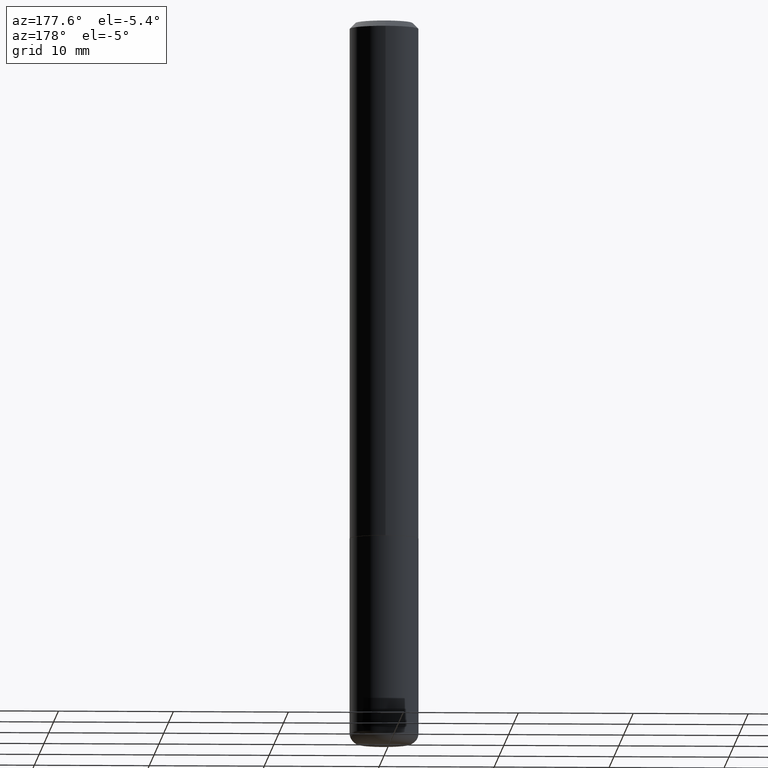
[diagram: clean part render]
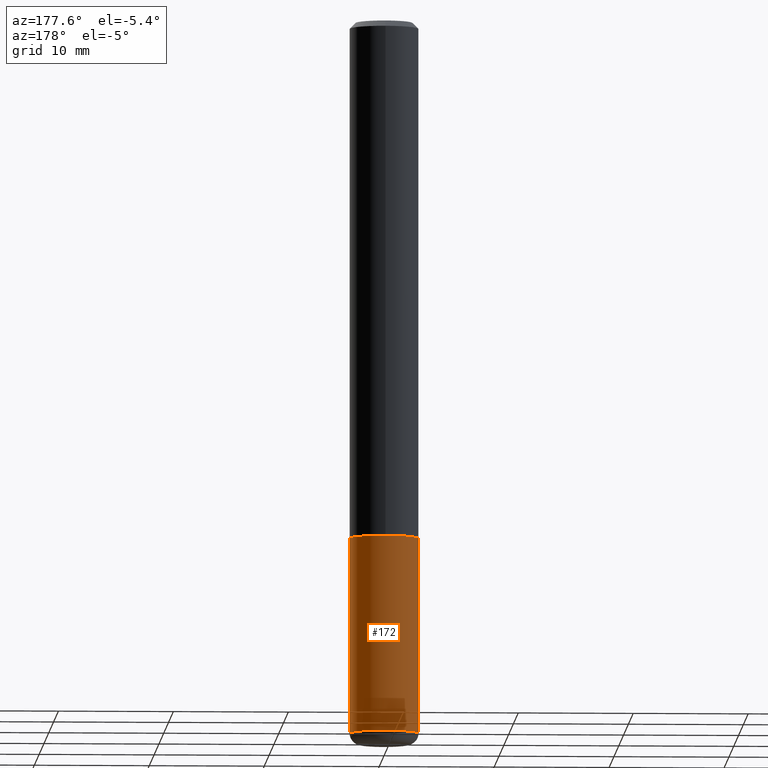
[diagram: same view with one face highlighted and labeled with its STEP entity id]
A machine part, auxiliary view. The second image highlights one B-rep face of the part: STEP entity #172.
In plain terms, the highlighted cylindrical surface (edge-blend (fillet) strip) has radius 2.9997 mm, axis along (-0, 0, 1).
Its self-contained STEP definition (entity closure, byte-faithful):
#2 = DIRECTION ( 'NONE',  ( -2.445468806185136597E-29, 3.491481338843145583E-15, 1.000000000000000000 ) ) ;
#5 = AXIS2_PLACEMENT_3D ( 'NONE', #184, #219, #373 ) ;
#24 = CIRCLE ( 'NONE', #5, 0.1180999999999999966 ) ;
#32 = VECTOR ( 'NONE', #76, 39.37007874015748143 ) ;
#38 = EDGE_CURVE ( 'NONE', #99, #292, #113, .T. ) ;
#55 = AXIS2_PLACEMENT_3D ( 'NONE', #79, #2, #392 ) ;
#76 = DIRECTION ( 'NONE',  ( -2.445468806185136877E-29, 3.491481338843145188E-15, 1.000000000000000000 ) ) ;
#79 = CARTESIAN_POINT ( 'NONE',  ( 0.000000000000000000, 0.000000000000000000, 0.000000000000000000 ) ) ;
#84 = CARTESIAN_POINT ( 'NONE',  ( -0.1180999999999999966, 8.391509709326782957E-16, -5.809262341591043784E-30 ) ) ;
#89 = CARTESIAN_POINT ( 'NONE',  ( 0.1180999999999999966, -7.010196232129265043E-15, -1.771600000000000286 ) ) ;
#90 = EDGE_CURVE ( 'NONE', #138, #418, #154, .T. ) ;
#94 = VECTOR ( 'NONE', #151, 39.37007874015748143 ) ;
#99 = VERTEX_POINT ( 'NONE', #270 ) ;
#111 = CARTESIAN_POINT ( 'NONE',  ( -0.1181000000000000383, -7.683205829049555557E-15, -2.440900000000000070 ) ) ;
#113 = LINE ( 'NONE', #235, #32 ) ;
#114 = DIRECTION ( 'NONE',  ( 1.000000000000000000, -6.982962677686265133E-15, 0.000000000000000000 ) ) ;
#138 = VERTEX_POINT ( 'NONE', #111 ) ;
#151 = DIRECTION ( 'NONE',  ( -2.445468806185136877E-29, 3.491481338843145188E-15, 1.000000000000000000 ) ) ;
#154 = LINE ( 'NONE', #84, #94 ) ;
#171 = ORIENTED_EDGE ( 'NONE', *, *, #280, .T. ) ;
#172 = ADVANCED_FACE ( 'NONE', ( #264 ), #296, .T. ) ;
#178 = ORIENTED_EDGE ( 'NONE', *, *, #187, .F. ) ;
#184 = CARTESIAN_POINT ( 'NONE',  ( 5.969144809017300159E-29, -8.522356799982234543E-15, -2.440900000000000070 ) ) ;
#187 = EDGE_CURVE ( 'NONE', #292, #418, #339, .T. ) ;
#201 = EDGE_LOOP ( 'NONE', ( #171, #316, #178, #378 ) ) ;
#219 = DIRECTION ( 'NONE',  ( -2.445468806185136597E-29, 3.491481338843145583E-15, 1.000000000000000000 ) ) ;
#235 = CARTESIAN_POINT ( 'NONE',  ( 0.1180999999999999966, -8.246878922347480654E-16, 5.758764772215000440E-30 ) ) ;
#247 = CARTESIAN_POINT ( 'NONE',  ( -0.1180999999999999966, -6.514781599005697070E-15, -1.771600000000000286 ) ) ;
#264 = FACE_OUTER_BOUND ( 'NONE', #201, .T. ) ;
#270 = CARTESIAN_POINT ( 'NONE',  ( 0.1181000000000000383, -9.347044692216982806E-15, -2.440900000000000070 ) ) ;
#280 = EDGE_CURVE ( 'NONE', #99, #138, #24, .T. ) ;
#292 = VERTEX_POINT ( 'NONE', #89 ) ;
#296 = CYLINDRICAL_SURFACE ( 'NONE', #55, 0.1180999999999999966 ) ;
#316 = ORIENTED_EDGE ( 'NONE', *, *, #90, .T. ) ;
#331 = AXIS2_PLACEMENT_3D ( 'NONE', #351, #382, #114 ) ;
#339 = CIRCLE ( 'NONE', #331, 0.1180999999999999966 ) ;
#351 = CARTESIAN_POINT ( 'NONE',  ( 4.332392537037588763E-29, -6.185508339894517569E-15, -1.771600000000000286 ) ) ;
#373 = DIRECTION ( 'NONE',  ( 1.000000000000000000, -6.982962677686273021E-15, 0.000000000000000000 ) ) ;
#378 = ORIENTED_EDGE ( 'NONE', *, *, #38, .F. ) ;
#382 = DIRECTION ( 'NONE',  ( -2.445468806185136597E-29, 3.491481338843145583E-15, 1.000000000000000000 ) ) ;
#392 = DIRECTION ( 'NONE',  ( 1.000000000000000000, -6.982962677686266711E-15, 4.876176775795936353E-29 ) ) ;
#418 = VERTEX_POINT ( 'NONE', #247 ) ;